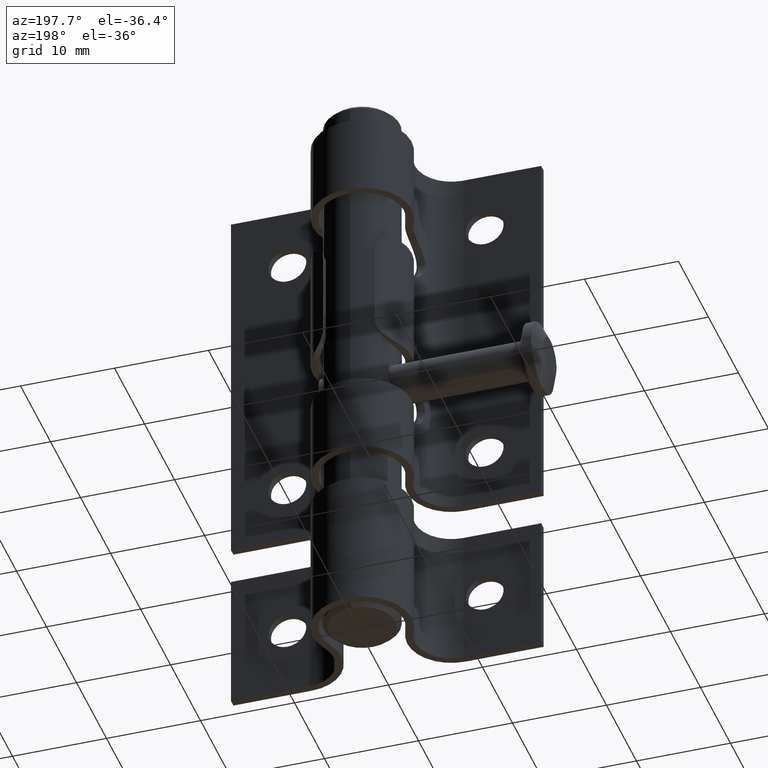
[diagram: clean part render]
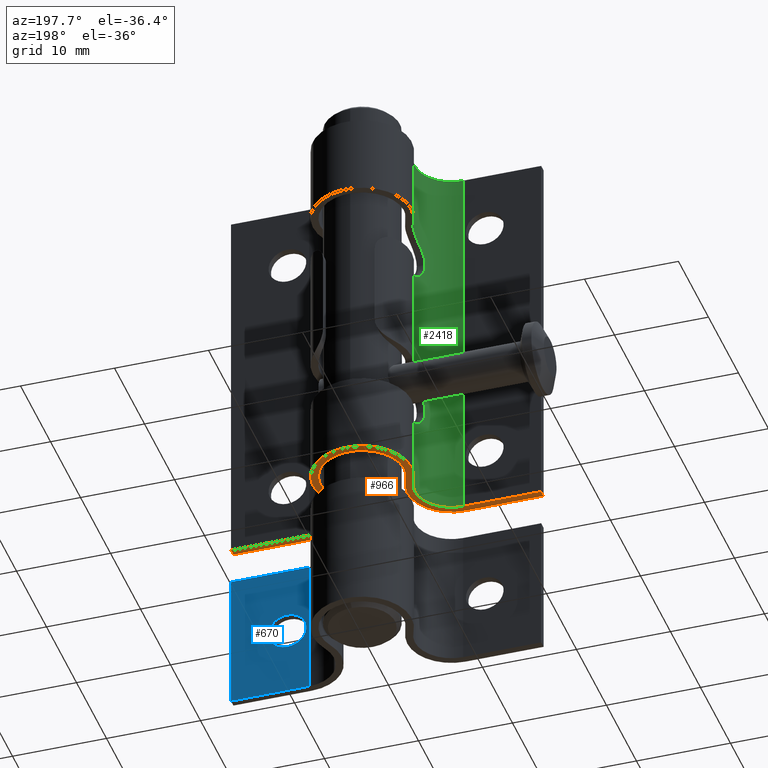
[diagram: same view with three faces highlighted in distinct colors, each labeled with its STEP entity id]
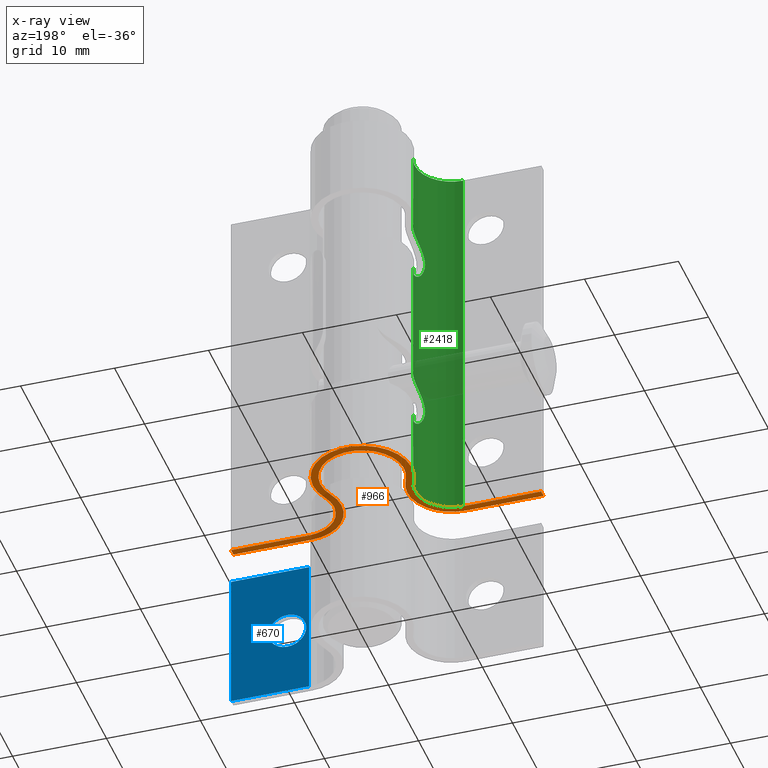
[diagram: x-ray of the same camera — body ghosted, the three highlighted faces saturated]
A machine part, auxiliary view with three faces highlighted in distinct colors.
The next image is the same camera in x-ray (body ghosted, the three faces saturated) — at least one of them is partly hidden behind the body in this view.
Their STEP definitions:

[orange] entity #966 — the highlighted planar face has unit normal (0, 0, 1).
#46 = VERTEX_POINT ( 'NONE', #675 ) ;
#51 = VECTOR ( 'NONE', #6102, 1000.000000000000000 ) ;
#617 = EDGE_CURVE ( 'NONE', #3458, #1690, #6745, .T. ) ;
#675 = CARTESIAN_POINT ( 'NONE',  ( -8.192006389780432940, 0.000000000000000000, -20.50000000000000000 ) ) ;
#966 = ADVANCED_FACE ( 'NONE', ( #10582 ), #8361, .F. ) ;
#1041 = CARTESIAN_POINT ( 'NONE',  ( -8.192006389780432940, 0.7999999999999994893, -20.50000000000000000 ) ) ;
#1246 = VECTOR ( 'NONE', #3493, 1000.000000000000000 ) ;
#1252 = ORIENTED_EDGE ( 'NONE', *, *, #6475, .F. ) ;
#1642 = DIRECTION ( 'NONE',  ( 1.000000000000000000, 0.000000000000000000, -0.000000000000000000 ) ) ;
#1690 = VERTEX_POINT ( 'NONE', #14532 ) ;
#1699 = CARTESIAN_POINT ( 'NONE',  ( 8.192006389780432940, 4.692006389780432052, -20.50000000000000000 ) ) ;
#1744 = DIRECTION ( 'NONE',  ( 1.000000000000000000, 0.000000000000000000, 0.000000000000000000 ) ) ;
#1861 = ORIENTED_EDGE ( 'NONE', *, *, #11573, .F. ) ;
#1955 = CIRCLE ( 'NONE', #14147, 4.692006389780432052 ) ;
#2044 = ORIENTED_EDGE ( 'NONE', *, *, #14173, .F. ) ;
#2145 = ORIENTED_EDGE ( 'NONE', *, *, #617, .F. ) ;
#2167 = EDGE_CURVE ( 'NONE', #11341, #11452, #5799, .T. ) ;
#2306 = CIRCLE ( 'NONE', #15014, 3.892006389780433562 ) ;
#2394 = ORIENTED_EDGE ( 'NONE', *, *, #10800, .F. ) ;
#3098 = LINE ( 'NONE', #9563, #8194 ) ;
#3175 = CARTESIAN_POINT ( 'NONE',  ( -16.50000000000000000, 0.8000000000000000444, -20.50000000000000000 ) ) ;
#3458 = VERTEX_POINT ( 'NONE', #13278 ) ;
#3493 = DIRECTION ( 'NONE',  ( -1.000000000000000000, -0.000000000000000000, -0.000000000000000000 ) ) ;
#3506 = VERTEX_POINT ( 'NONE', #7576 ) ;
#3641 = VERTEX_POINT ( 'NONE', #1041 ) ;
#3969 = ORIENTED_EDGE ( 'NONE', *, *, #6171, .F. ) ;
#4138 = VECTOR ( 'NONE', #11155, 1000.000000000000000 ) ;
#4319 = EDGE_CURVE ( 'NONE', #8022, #46, #13120, .T. ) ;
#4341 = LINE ( 'NONE', #9322, #1246 ) ;
#4384 = AXIS2_PLACEMENT_3D ( 'NONE', #9643, #8568, #9591 ) ;
#4401 = ORIENTED_EDGE ( 'NONE', *, *, #2167, .F. ) ;
#4511 = CARTESIAN_POINT ( 'NONE',  ( -16.50000000000000000, 0.000000000000000000, -20.50000000000000000 ) ) ;
#4608 = EDGE_CURVE ( 'NONE', #4760, #10935, #3098, .T. ) ;
#4697 = VERTEX_POINT ( 'NONE', #4898 ) ;
#4760 = VERTEX_POINT ( 'NONE', #14128 ) ;
#4868 = DIRECTION ( 'NONE',  ( -1.000000000000000000, 0.000000000000000000, 0.000000000000000000 ) ) ;
#4898 = CARTESIAN_POINT ( 'NONE',  ( 8.192006389780432940, 0.7999999999999990452, -20.50000000000000000 ) ) ;
#5095 = DIRECTION ( 'NONE',  ( 1.000000000000000000, 0.000000000000000000, 0.000000000000000000 ) ) ;
#5130 = ORIENTED_EDGE ( 'NONE', *, *, #9130, .F. ) ;
#5151 = DIRECTION ( 'NONE',  ( 0.000000000000000000, 0.000000000000000000, 1.000000000000000000 ) ) ;
#5427 = DIRECTION ( 'NONE',  ( -1.000000000000000000, -1.174509756527323186E-16, -0.000000000000000000 ) ) ;
#5799 = CIRCLE ( 'NONE', #13586, 5.250000000000000888 ) ;
#6102 = DIRECTION ( 'NONE',  ( -0.000000000000000000, -1.000000000000000000, -0.000000000000000000 ) ) ;
#6171 = EDGE_CURVE ( 'NONE', #3641, #11331, #4341, .T. ) ;
#6320 = DIRECTION ( 'NONE',  ( 1.000000000000000000, 0.000000000000000000, 0.000000000000000000 ) ) ;
#6475 = EDGE_CURVE ( 'NONE', #10935, #4697, #11632, .T. ) ;
#6655 = CARTESIAN_POINT ( 'NONE',  ( 0.000000000000000000, 8.749999999999998224, -20.50000000000000000 ) ) ;
#6745 = CIRCLE ( 'NONE', #7325, 4.450000000000001954 ) ;
#7325 = AXIS2_PLACEMENT_3D ( 'NONE', #8305, #11707, #4868 ) ;
#7416 = CIRCLE ( 'NONE', #4384, 3.892006389780432674 ) ;
#7441 = DIRECTION ( 'NONE',  ( 1.000000000000000000, 0.000000000000000000, 0.000000000000000000 ) ) ;
#7576 = CARTESIAN_POINT ( 'NONE',  ( 8.192006389780432940, 0.000000000000000000, -20.50000000000000000 ) ) ;
#7736 = CARTESIAN_POINT ( 'NONE',  ( 16.50000000000000000, 0.8000000000000000444, -20.50000000000000000 ) ) ;
#7845 = ORIENTED_EDGE ( 'NONE', *, *, #4608, .F. ) ;
#7868 = CARTESIAN_POINT ( 'NONE',  ( 4.704441422664571881, 6.419607135970900380, -20.50000000000000000 ) ) ;
#8022 = VERTEX_POINT ( 'NONE', #4511 ) ;
#8194 = VECTOR ( 'NONE', #9601, 1000.000000000000000 ) ;
#8305 = CARTESIAN_POINT ( 'NONE',  ( 0.000000000000000000, 8.749999999999998224, -20.50000000000000000 ) ) ;
#8306 = AXIS2_PLACEMENT_3D ( 'NONE', #14468, #14419, #1642 ) ;
#8361 = PLANE ( 'NONE',  #8306 ) ;
#8568 = DIRECTION ( 'NONE',  ( -0.000000000000000000, -0.000000000000000000, -1.000000000000000000 ) ) ;
#8705 = VECTOR ( 'NONE', #5427, 1000.000000000000000 ) ;
#9130 = EDGE_CURVE ( 'NONE', #11452, #3641, #7416, .T. ) ;
#9157 = DIRECTION ( 'NONE',  ( -1.000000000000000000, 0.000000000000000000, 0.000000000000000000 ) ) ;
#9222 = CIRCLE ( 'NONE', #13850, 4.692006389780432052 ) ;
#9322 = CARTESIAN_POINT ( 'NONE',  ( -16.50000000000000000, 0.8000000000000000444, -20.50000000000000000 ) ) ;
#9516 = EDGE_LOOP ( 'NONE', ( #9858, #3969, #5130, #4401, #10797, #1252, #7845, #2394, #2044, #2145, #1861, #9667 ) ) ;
#9563 = CARTESIAN_POINT ( 'NONE',  ( 16.50000000000000000, 0.8000000000000000444, -20.50000000000000000 ) ) ;
#9572 = EDGE_CURVE ( 'NONE', #11331, #8022, #10229, .T. ) ;
#9591 = DIRECTION ( 'NONE',  ( 1.000000000000000000, 0.000000000000000000, 0.000000000000000000 ) ) ;
#9601 = DIRECTION ( 'NONE',  ( -0.000000000000000000, 1.000000000000000000, -0.000000000000000000 ) ) ;
#9643 = CARTESIAN_POINT ( 'NONE',  ( -8.192006389780432940, 4.692006389780432052, -20.50000000000000000 ) ) ;
#9667 = ORIENTED_EDGE ( 'NONE', *, *, #4319, .F. ) ;
#9850 = CARTESIAN_POINT ( 'NONE',  ( -16.50000000000000000, 0.000000000000000000, -20.50000000000000000 ) ) ;
#9852 = CARTESIAN_POINT ( 'NONE',  ( 8.192006389780432940, 4.692006389780432052, -20.50000000000000000 ) ) ;
#9858 = ORIENTED_EDGE ( 'NONE', *, *, #9572, .F. ) ;
#10229 = LINE ( 'NONE', #13852, #51 ) ;
#10582 = FACE_OUTER_BOUND ( 'NONE', #9516, .T. ) ;
#10705 = CARTESIAN_POINT ( 'NONE',  ( -4.704441422664572769, 6.419607135970900380, -20.50000000000000000 ) ) ;
#10797 = ORIENTED_EDGE ( 'NONE', *, *, #11541, .F. ) ;
#10800 = EDGE_CURVE ( 'NONE', #3506, #4760, #12340, .T. ) ;
#10935 = VERTEX_POINT ( 'NONE', #7736 ) ;
#11155 = DIRECTION ( 'NONE',  ( 1.000000000000000000, 0.000000000000000000, 0.000000000000000000 ) ) ;
#11331 = VERTEX_POINT ( 'NONE', #3175 ) ;
#11341 = VERTEX_POINT ( 'NONE', #7868 ) ;
#11452 = VERTEX_POINT ( 'NONE', #10705 ) ;
#11541 = EDGE_CURVE ( 'NONE', #4697, #11341, #2306, .T. ) ;
#11573 = EDGE_CURVE ( 'NONE', #46, #3458, #1955, .T. ) ;
#11632 = LINE ( 'NONE', #14646, #8705 ) ;
#11707 = DIRECTION ( 'NONE',  ( -0.000000000000000000, -0.000000000000000000, -1.000000000000000000 ) ) ;
#11831 = VECTOR ( 'NONE', #1744, 1000.000000000000000 ) ;
#12340 = LINE ( 'NONE', #14502, #4138 ) ;
#13095 = DIRECTION ( 'NONE',  ( 0.000000000000000000, 0.000000000000000000, 1.000000000000000000 ) ) ;
#13120 = LINE ( 'NONE', #9850, #11831 ) ;
#13278 = CARTESIAN_POINT ( 'NONE',  ( -3.987574158258543999, 6.774714620013430277, -20.50000000000000000 ) ) ;
#13308 = CARTESIAN_POINT ( 'NONE',  ( -8.192006389780432940, 4.692006389780432052, -20.50000000000000000 ) ) ;
#13365 = DIRECTION ( 'NONE',  ( -0.000000000000000000, -0.000000000000000000, -1.000000000000000000 ) ) ;
#13586 = AXIS2_PLACEMENT_3D ( 'NONE', #6655, #14804, #9157 ) ;
#13850 = AXIS2_PLACEMENT_3D ( 'NONE', #1699, #13095, #5095 ) ;
#13852 = CARTESIAN_POINT ( 'NONE',  ( -16.50000000000000000, 0.000000000000000000, -20.50000000000000000 ) ) ;
#14128 = CARTESIAN_POINT ( 'NONE',  ( 16.50000000000000000, 0.000000000000000000, -20.50000000000000000 ) ) ;
#14147 = AXIS2_PLACEMENT_3D ( 'NONE', #13308, #5151, #6320 ) ;
#14173 = EDGE_CURVE ( 'NONE', #1690, #3506, #9222, .T. ) ;
#14419 = DIRECTION ( 'NONE',  ( 0.000000000000000000, 0.000000000000000000, 1.000000000000000000 ) ) ;
#14468 = CARTESIAN_POINT ( 'NONE',  ( -8.192006389780432940, 4.692006389780432052, -20.50000000000000000 ) ) ;
#14502 = CARTESIAN_POINT ( 'NONE',  ( 8.192006389780432940, 0.000000000000000000, -20.50000000000000000 ) ) ;
#14532 = CARTESIAN_POINT ( 'NONE',  ( 3.987574158258543999, 6.774714620013430277, -20.50000000000000000 ) ) ;
#14646 = CARTESIAN_POINT ( 'NONE',  ( 8.192006389780432940, 0.7999999999999990452, -20.50000000000000000 ) ) ;
#14804 = DIRECTION ( 'NONE',  ( 0.000000000000000000, 0.000000000000000000, 1.000000000000000000 ) ) ;
#15014 = AXIS2_PLACEMENT_3D ( 'NONE', #9852, #13365, #7441 ) ;

[blue] entity #670 — the highlighted planar face has unit normal (0, -1, 0).
#164 = EDGE_CURVE ( 'NONE', #10051, #14942, #4066, .T. ) ;
#476 = CARTESIAN_POINT ( 'NONE',  ( 8.192006389780432940, 0.7999999999999990452, 7.500000000000000000 ) ) ;
#604 = DIRECTION ( 'NONE',  ( 0.000000000000000000, 0.000000000000000000, 1.000000000000000000 ) ) ;
#670 = ADVANCED_FACE ( 'NONE', ( #11305, #11659 ), #4934, .F. ) ;
#1460 = DIRECTION ( 'NONE',  ( -1.000000000000000000, -1.174509756527323186E-16, -0.000000000000000000 ) ) ;
#1480 = DIRECTION ( 'NONE',  ( 1.174509756527323186E-16, -1.000000000000000000, 0.000000000000000000 ) ) ;
#1688 = CARTESIAN_POINT ( 'NONE',  ( 8.192006389780432940, 0.7999999999999990452, -7.500000000000000000 ) ) ;
#1906 = VECTOR ( 'NONE', #14463, 1000.000000000000000 ) ;
#3258 = EDGE_CURVE ( 'NONE', #8815, #10080, #3269, .T. ) ;
#3269 = LINE ( 'NONE', #5843, #12201 ) ;
#3723 = VERTEX_POINT ( 'NONE', #7395 ) ;
#3803 = DIRECTION ( 'NONE',  ( 1.000000000000000000, 1.174509756527323186E-16, 0.000000000000000000 ) ) ;
#3930 = CARTESIAN_POINT ( 'NONE',  ( 10.50000000000000000, 0.8000000000000000444, -3.857637417314162689E-15 ) ) ;
#3965 = EDGE_CURVE ( 'NONE', #3723, #3723, #4204, .T. ) ;
#4066 = LINE ( 'NONE', #476, #1906 ) ;
#4152 = VECTOR ( 'NONE', #6314, 1000.000000000000000 ) ;
#4204 = CIRCLE ( 'NONE', #11906, 1.999999999999999556 ) ;
#4565 = ORIENTED_EDGE ( 'NONE', *, *, #6430, .F. ) ;
#4891 = ORIENTED_EDGE ( 'NONE', *, *, #3965, .F. ) ;
#4934 = PLANE ( 'NONE',  #14061 ) ;
#5126 = CARTESIAN_POINT ( 'NONE',  ( 8.192006389780432940, 0.7999999999999990452, 7.500000000000000000 ) ) ;
#5782 = DIRECTION ( 'NONE',  ( -0.000000000000000000, -0.000000000000000000, -1.000000000000000000 ) ) ;
#5843 = CARTESIAN_POINT ( 'NONE',  ( 16.50000000000000000, 0.8000000000000000444, 7.500000000000000000 ) ) ;
#5983 = EDGE_CURVE ( 'NONE', #10080, #14942, #6711, .T. ) ;
#6108 = CARTESIAN_POINT ( 'NONE',  ( 8.192006389780432940, 0.7999999999999990452, 7.500000000000000000 ) ) ;
#6314 = DIRECTION ( 'NONE',  ( -1.000000000000000000, -1.174509756527323186E-16, -0.000000000000000000 ) ) ;
#6405 = DIRECTION ( 'NONE',  ( 0.000000000000000000, 1.000000000000000000, 0.000000000000000000 ) ) ;
#6430 = EDGE_CURVE ( 'NONE', #8815, #10051, #9810, .T. ) ;
#6711 = LINE ( 'NONE', #1688, #4152 ) ;
#7395 = CARTESIAN_POINT ( 'NONE',  ( 10.50000000000000000, 0.8000000000000000444, 1.999999999999995781 ) ) ;
#7428 = VECTOR ( 'NONE', #1460, 1000.000000000000000 ) ;
#7692 = ORIENTED_EDGE ( 'NONE', *, *, #164, .F. ) ;
#8170 = EDGE_LOOP ( 'NONE', ( #13673, #7692, #4565, #12383 ) ) ;
#8791 = CARTESIAN_POINT ( 'NONE',  ( 8.192006389780432940, 0.7999999999999990452, 7.500000000000000000 ) ) ;
#8815 = VERTEX_POINT ( 'NONE', #14591 ) ;
#9135 = CARTESIAN_POINT ( 'NONE',  ( 16.50000000000000000, 0.8000000000000000444, -7.500000000000000000 ) ) ;
#9810 = LINE ( 'NONE', #5126, #7428 ) ;
#10051 = VERTEX_POINT ( 'NONE', #8791 ) ;
#10080 = VERTEX_POINT ( 'NONE', #9135 ) ;
#11190 = CARTESIAN_POINT ( 'NONE',  ( 8.192006389780432940, 0.7999999999999990452, -7.500000000000000000 ) ) ;
#11305 = FACE_BOUND ( 'NONE', #14805, .T. ) ;
#11659 = FACE_OUTER_BOUND ( 'NONE', #8170, .T. ) ;
#11906 = AXIS2_PLACEMENT_3D ( 'NONE', #3930, #6405, #604 ) ;
#12201 = VECTOR ( 'NONE', #5782, 1000.000000000000000 ) ;
#12383 = ORIENTED_EDGE ( 'NONE', *, *, #3258, .T. ) ;
#13673 = ORIENTED_EDGE ( 'NONE', *, *, #5983, .T. ) ;
#14061 = AXIS2_PLACEMENT_3D ( 'NONE', #6108, #1480, #3803 ) ;
#14463 = DIRECTION ( 'NONE',  ( -0.000000000000000000, -0.000000000000000000, -1.000000000000000000 ) ) ;
#14591 = CARTESIAN_POINT ( 'NONE',  ( 16.50000000000000000, 0.8000000000000000444, 7.500000000000000000 ) ) ;
#14805 = EDGE_LOOP ( 'NONE', ( #4891 ) ) ;
#14942 = VERTEX_POINT ( 'NONE', #11190 ) ;

[green] entity #2418 — the highlighted cylindrical surface (partial cylindrical patch) has radius 3.892 mm, axis along (-0, -0, -1).
#116 = CARTESIAN_POINT ( 'NONE',  ( -4.395750246826683139, 5.550000000000008704, -12.00000000000000000 ) ) ;
#265 = CARTESIAN_POINT ( 'NONE',  ( -4.610754948063200409, 3.164355116029331949, -10.62951406229491269 ) ) ;
#350 = CARTESIAN_POINT ( 'NONE',  ( -4.492521313729572974, 3.475989417819128846, -7.435405907711704288 ) ) ;
#369 = CARTESIAN_POINT ( 'NONE',  ( -4.790826365271035669, 2.800000000000007372, 9.250000000000000000 ) ) ;
#413 = CARTESIAN_POINT ( 'NONE',  ( -4.790826365271035669, 2.800000000000007372, 9.250000000000000000 ) ) ;
#484 = CIRCLE ( 'NONE', #12305, 3.892006389780432674 ) ;
#505 = CARTESIAN_POINT ( 'NONE',  ( -4.385805222277294746, 3.865080862443550647, 11.43089588567125148 ) ) ;
#621 = CARTESIAN_POINT ( 'NONE',  ( -4.328199048717781494, 5.192387823474288844, 11.98263748640717985 ) ) ;
#706 = CIRCLE ( 'NONE', #3349, 3.892006389780432674 ) ;
#746 = EDGE_CURVE ( 'NONE', #4380, #7655, #3632, .T. ) ;
#760 = ORIENTED_EDGE ( 'NONE', *, *, #4523, .T. ) ;
#1041 = CARTESIAN_POINT ( 'NONE',  ( -8.192006389780432940, 0.7999999999999994893, -20.50000000000000000 ) ) ;
#1055 = CIRCLE ( 'NONE', #3922, 3.892006389780433562 ) ;
#1104 = VERTEX_POINT ( 'NONE', #1748 ) ;
#1108 = VERTEX_POINT ( 'NONE', #8665 ) ;
#1121 = CARTESIAN_POINT ( 'NONE',  ( -4.296580586082398234, 4.657582444082603246, 6.642576039455015291 ) ) ;
#1167 = CARTESIAN_POINT ( 'NONE',  ( -4.313804280126113611, 4.324480068509848785, 6.781565333727861855 ) ) ;
#1209 = CARTESIAN_POINT ( 'NONE',  ( -4.742506246391002378, 2.889153209979012260, 8.532452071548421557 ) ) ;
#1241 = DIRECTION ( 'NONE',  ( -0.000000000000000000, -0.000000000000000000, -1.000000000000000000 ) ) ;
#1262 = ORIENTED_EDGE ( 'NONE', *, *, #9306, .F. ) ;
#1266 = CARTESIAN_POINT ( 'NONE',  ( -4.298516473094553980, 4.834943057535244115, 6.588381117850130586 ) ) ;
#1402 = CARTESIAN_POINT ( 'NONE',  ( -4.714429760718751972, 2.942720195748070200, -10.14254544556991000 ) ) ;
#1425 = DIRECTION ( 'NONE',  ( -0.000000000000000000, -0.000000000000000000, -1.000000000000000000 ) ) ;
#1434 = EDGE_CURVE ( 'NONE', #13481, #12406, #2552, .T. ) ;
#1534 = CARTESIAN_POINT ( 'NONE',  ( -4.790826365271032117, 2.800000000000010036, -9.250000000000000000 ) ) ;
#1631 = CARTESIAN_POINT ( 'NONE',  ( -8.192006389780432940, 4.692006389780432052, 20.50000000000000000 ) ) ;
#1650 = VECTOR ( 'NONE', #14115, 1000.000000000000000 ) ;
#1701 = DIRECTION ( 'NONE',  ( -0.000000000000000000, -0.000000000000000000, -1.000000000000000000 ) ) ;
#1748 = CARTESIAN_POINT ( 'NONE',  ( -4.395750246826682250, 5.550000000000007816, 6.499999999999995559 ) ) ;
#1817 = CYLINDRICAL_SURFACE ( 'NONE', #10568, 3.892006389780431785 ) ;
#2021 = ORIENTED_EDGE ( 'NONE', *, *, #14420, .T. ) ;
#2228 = CARTESIAN_POINT ( 'NONE',  ( -4.648508748623620512, 3.080433907158462770, 8.026975608111200700 ) ) ;
#2386 = CARTESIAN_POINT ( 'NONE',  ( -4.332682776943116210, 4.166009213854698245, 6.866738636277351482 ) ) ;
#2418 = ADVANCED_FACE ( 'NONE', ( #6541 ), #1817, .F. ) ;
#2433 = CARTESIAN_POINT ( 'NONE',  ( -4.313804280126114499, 4.324480068509852337, -11.71843466627213459 ) ) ;
#2479 = CARTESIAN_POINT ( 'NONE',  ( -4.296580586082397346, 4.657582444082605910, -11.85742396054498293 ) ) ;
#2552 = LINE ( 'NONE', #7643, #14576 ) ;
#2678 = CARTESIAN_POINT ( 'NONE',  ( -4.298656686812079464, 4.837666399499647163, -6.587712460586683250 ) ) ;
#2682 = CARTESIAN_POINT ( 'NONE',  ( -4.610388573667998813, 3.165275444239477043, 10.63091284100199729 ) ) ;
#2739 = CARTESIAN_POINT ( 'NONE',  ( -4.790826365271033005, 2.800000000000010036, -9.066282883027524164 ) ) ;
#2846 = CARTESIAN_POINT ( 'NONE',  ( -4.790826365271032117, 2.800000000000010036, -9.250000000000000000 ) ) ;
#2927 = VERTEX_POINT ( 'NONE', #4908 ) ;
#2977 = CARTESIAN_POINT ( 'NONE',  ( -8.192006389780432940, 0.7999999999999994893, 20.50000000000000000 ) ) ;
#3106 = DIRECTION ( 'NONE',  ( -0.000000000000000000, -0.000000000000000000, -1.000000000000000000 ) ) ;
#3207 = CIRCLE ( 'NONE', #13083, 3.892006389780432674 ) ;
#3349 = AXIS2_PLACEMENT_3D ( 'NONE', #13924, #10427, #8119 ) ;
#3479 = ORIENTED_EDGE ( 'NONE', *, *, #3927, .T. ) ;
#3632 = LINE ( 'NONE', #13959, #1650 ) ;
#3641 = VERTEX_POINT ( 'NONE', #1041 ) ;
#3674 = ORIENTED_EDGE ( 'NONE', *, *, #6289, .T. ) ;
#3691 = CARTESIAN_POINT ( 'NONE',  ( -4.298516473094553092, 4.834943057535244115, -11.91161888214986853 ) ) ;
#3808 = CARTESIAN_POINT ( 'NONE',  ( -8.192006389780432940, 4.692006389780432052, 6.499999999999995559 ) ) ;
#3830 = VECTOR ( 'NONE', #5265, 1000.000000000000000 ) ;
#3853 = CARTESIAN_POINT ( 'NONE',  ( -4.385805222277293858, 3.865080862443552867, -7.069104114328750299 ) ) ;
#3854 = CARTESIAN_POINT ( 'NONE',  ( -4.704441422664572769, 6.419607135970900380, -6.499999999999999112 ) ) ;
#3856 = CARTESIAN_POINT ( 'NONE',  ( -4.742149599950213457, 2.889831864452029109, 9.970042835005802573 ) ) ;
#3895 = CARTESIAN_POINT ( 'NONE',  ( -4.328199048717782382, 5.192387823474292396, -6.517362513592820150 ) ) ;
#3922 = AXIS2_PLACEMENT_3D ( 'NONE', #3808, #13085, #6109 ) ;
#3927 = EDGE_CURVE ( 'NONE', #1108, #11452, #12215, .T. ) ;
#3998 = CARTESIAN_POINT ( 'NONE',  ( -4.532778879495658941, 3.361988499396439511, 10.92524241664243689 ) ) ;
#4057 = CARTESIAN_POINT ( 'NONE',  ( -4.298656686812079464, 4.837666399499645387, 11.91228753941331320 ) ) ;
#4380 = VERTEX_POINT ( 'NONE', #9788 ) ;
#4384 = AXIS2_PLACEMENT_3D ( 'NONE', #9643, #8568, #9591 ) ;
#4523 = EDGE_CURVE ( 'NONE', #9181, #5312, #9897, .T. ) ;
#4620 = CARTESIAN_POINT ( 'NONE',  ( -4.355160145203719857, 5.370406095343943420, 6.499999999999998224 ) ) ;
#4646 = DIRECTION ( 'NONE',  ( -1.000000000000000000, 0.000000000000000000, 0.000000000000000000 ) ) ;
#4853 = CARTESIAN_POINT ( 'NONE',  ( -4.395750246826683139, 5.550000000000008704, -12.00000000000000000 ) ) ;
#4883 = CARTESIAN_POINT ( 'NONE',  ( -4.395750246826682250, 5.550000000000009592, -6.499999999999999112 ) ) ;
#4908 = CARTESIAN_POINT ( 'NONE',  ( -8.192006389780432940, 0.7999999999999994893, 20.50000000000000000 ) ) ;
#4970 = CARTESIAN_POINT ( 'NONE',  ( -4.780290964697938350, 2.818629025677172883, -8.883163804601126756 ) ) ;
#5064 = CARTESIAN_POINT ( 'NONE',  ( -4.332768504278013744, 4.165455254213862979, -6.867082626032167347 ) ) ;
#5265 = DIRECTION ( 'NONE',  ( -0.000000000000000000, -0.000000000000000000, -1.000000000000000000 ) ) ;
#5312 = VERTEX_POINT ( 'NONE', #1534 ) ;
#5704 = CARTESIAN_POINT ( 'NONE',  ( -4.419338804790838182, 3.726759056953510729, 7.183658548139852940 ) ) ;
#5881 = EDGE_CURVE ( 'NONE', #1104, #13481, #1055, .T. ) ;
#5893 = CARTESIAN_POINT ( 'NONE',  ( -4.332682776943116210, 4.166009213854698245, -11.63326136372264230 ) ) ;
#5929 = DIRECTION ( 'NONE',  ( 0.000000000000000000, 1.000000000000000000, -4.457144470604713424E-16 ) ) ;
#5930 = CARTESIAN_POINT ( 'NONE',  ( -4.419338804790837294, 3.726759056953514282, -11.31634145186014173 ) ) ;
#6100 = CARTESIAN_POINT ( 'NONE',  ( -4.355245130862329006, 5.370782120671774074, 12.00000000000000178 ) ) ;
#6109 = DIRECTION ( 'NONE',  ( 4.457144470604712833E-15, 1.000000000000000000, 4.457144470604713424E-16 ) ) ;
#6206 = CARTESIAN_POINT ( 'NONE',  ( -4.648141188764522980, 3.081217284370003640, 10.47476887366139309 ) ) ;
#6289 = EDGE_CURVE ( 'NONE', #10592, #1108, #7797, .T. ) ;
#6330 = VECTOR ( 'NONE', #1701, 1000.000000000000000 ) ;
#6541 = FACE_OUTER_BOUND ( 'NONE', #12027, .T. ) ;
#6660 = EDGE_CURVE ( 'NONE', #12406, #9181, #706, .T. ) ;
#6855 = CARTESIAN_POINT ( 'NONE',  ( -4.532494096455498500, 3.362702031103008249, 7.573668244128286098 ) ) ;
#7054 = CARTESIAN_POINT ( 'NONE',  ( -4.492419731104907221, 3.476365951447296876, 7.435057476182930891 ) ) ;
#7102 = CARTESIAN_POINT ( 'NONE',  ( -4.385785642324785627, 3.865123448050652666, -11.43095305512051141 ) ) ;
#7321 = CARTESIAN_POINT ( 'NONE',  ( -4.790826365271032117, 2.800000000000010036, -9.250000000000000000 ) ) ;
#7347 = AXIS2_PLACEMENT_3D ( 'NONE', #12850, #10731, #5929 ) ;
#7416 = CIRCLE ( 'NONE', #4384, 3.892006389780432674 ) ;
#7643 = CARTESIAN_POINT ( 'NONE',  ( -4.704441422664572769, 6.419607135970900380, 20.50000000000000000 ) ) ;
#7655 = VERTEX_POINT ( 'NONE', #10650 ) ;
#7797 = CIRCLE ( 'NONE', #7347, 3.892006389780433562 ) ;
#7810 = DIRECTION ( 'NONE',  ( -0.000000000000000000, 5.337610695313251385E-16, -1.000000000000000000 ) ) ;
#7915 = CARTESIAN_POINT ( 'NONE',  ( -8.192006389780432940, 4.692006389780432052, 11.99999999999999822 ) ) ;
#8053 = CARTESIAN_POINT ( 'NONE',  ( -4.395750246826682250, 5.550000000000007816, 6.499999999999995559 ) ) ;
#8119 = DIRECTION ( 'NONE',  ( 1.000000000000000000, 1.693714898829791476E-14, 0.000000000000000000 ) ) ;
#8290 = CARTESIAN_POINT ( 'NONE',  ( -4.742506246391000602, 2.889153209979014036, -9.967547928451574890 ) ) ;
#8488 = CARTESIAN_POINT ( 'NONE',  ( -4.742149599950212568, 2.889831864452031773, -8.529957164994197427 ) ) ;
#8529 = B_SPLINE_CURVE_WITH_KNOTS ( 'NONE', 3,
 ( #2846, #11007, #9410, #8290, #1402, #9570, #265, #11889, #12914, #5930, #7102, #5893, #2433, #2479, #3691, #10639, #12974, #4853 ),
 .UNSPECIFIED., .F., .F.,
 ( 4, 2, 2, 2, 2, 2, 2, 2, 4 ),
 ( 1.788112030672749005E-18, 0.0005431114426958862269, 0.001086222885391770719, 0.001629334328087655211, 0.002172445770783539704, 0.002715557213479424196, 0.003258668656175308688, 0.003801780098871193180, 0.004344891541567077672 ),
 .UNSPECIFIED. ) ;
#8539 = CARTESIAN_POINT ( 'NONE',  ( -4.610388573667996148, 3.165275444239479263, -7.869087158998000930 ) ) ;
#8568 = DIRECTION ( 'NONE',  ( -0.000000000000000000, -0.000000000000000000, -1.000000000000000000 ) ) ;
#8570 = ORIENTED_EDGE ( 'NONE', *, *, #13112, .F. ) ;
#8665 = CARTESIAN_POINT ( 'NONE',  ( -4.704441422664572769, 6.419607135970900380, -12.00000000000000000 ) ) ;
#8697 = CARTESIAN_POINT ( 'NONE',  ( -4.332768504278014632, 4.165455254213858538, 11.63291737396783532 ) ) ;
#8793 = CARTESIAN_POINT ( 'NONE',  ( -4.704441422664572769, 6.419607135970900380, 20.50000000000000000 ) ) ;
#8858 = CARTESIAN_POINT ( 'NONE',  ( -4.395750246826681362, 5.550000000000005151, 11.99999999999999822 ) ) ;
#8976 = ORIENTED_EDGE ( 'NONE', *, *, #13434, .T. ) ;
#9018 = ORIENTED_EDGE ( 'NONE', *, *, #9130, .T. ) ;
#9130 = EDGE_CURVE ( 'NONE', #11452, #3641, #7416, .T. ) ;
#9181 = VERTEX_POINT ( 'NONE', #4883 ) ;
#9306 = EDGE_CURVE ( 'NONE', #2927, #3641, #9428, .T. ) ;
#9376 = CARTESIAN_POINT ( 'NONE',  ( -4.385785642324784739, 3.865123448050650889, 7.069046944879487704 ) ) ;
#9410 = CARTESIAN_POINT ( 'NONE',  ( -4.780493624143159259, 2.818263750820186431, -9.614139718387228584 ) ) ;
#9428 = LINE ( 'NONE', #2977, #6330 ) ;
#9532 = CARTESIAN_POINT ( 'NONE',  ( -4.395750246826681362, 5.550000000000005151, 11.99999999999999822 ) ) ;
#9559 = ORIENTED_EDGE ( 'NONE', *, *, #746, .T. ) ;
#9570 = CARTESIAN_POINT ( 'NONE',  ( -4.648508748623620512, 3.080433907158465434, -10.47302439188879575 ) ) ;
#9591 = DIRECTION ( 'NONE',  ( 1.000000000000000000, 0.000000000000000000, 0.000000000000000000 ) ) ;
#9643 = CARTESIAN_POINT ( 'NONE',  ( -8.192006389780432940, 4.692006389780432052, -20.50000000000000000 ) ) ;
#9672 = CARTESIAN_POINT ( 'NONE',  ( -4.395750246826682250, 5.550000000000009592, -6.499999999999999112 ) ) ;
#9676 = CARTESIAN_POINT ( 'NONE',  ( -4.419104291213912461, 3.727591096116293912, 11.31714716501056728 ) ) ;
#9788 = CARTESIAN_POINT ( 'NONE',  ( -4.704441422664572769, 6.419607135970900380, 20.50000000000000000 ) ) ;
#9897 = B_SPLINE_CURVE_WITH_KNOTS ( 'NONE', 3,
 ( #9672, #12047, #3895, #2678, #14328, #10840, #5064, #3853, #14390, #350, #13185, #8539, #13130, #11983, #8488, #4970, #2739, #7321 ),
 .UNSPECIFIED., .F., .F.,
 ( 4, 2, 2, 2, 2, 2, 2, 2, 4 ),
 ( 0.000000000000000000, 0.0005430407401495039197, 0.001086081480299007839, 0.001629122220448511651, 0.002172162960598015679, 0.002715203700747519707, 0.003258244440897023302, 0.003801285181046527330, 0.004344325921196031358 ),
 .UNSPECIFIED. ) ;
#10399 = CARTESIAN_POINT ( 'NONE',  ( -4.328030025462391350, 5.191387284804446445, 6.517433729022505950 ) ) ;
#10427 = DIRECTION ( 'NONE',  ( -0.000000000000000000, -0.000000000000000000, -1.000000000000000000 ) ) ;
#10492 = CARTESIAN_POINT ( 'NONE',  ( -4.790826365271035669, 2.800000000000006928, 9.066036854258705091 ) ) ;
#10537 = CARTESIAN_POINT ( 'NONE',  ( -4.780493624143159259, 2.818263750820183766, 8.885860281612767864 ) ) ;
#10568 = AXIS2_PLACEMENT_3D ( 'NONE', #11577, #1241, #4646 ) ;
#10592 = VERTEX_POINT ( 'NONE', #116 ) ;
#10639 = CARTESIAN_POINT ( 'NONE',  ( -4.328030025462390462, 5.191387284804446445, -11.98256627097749494 ) ) ;
#10650 = CARTESIAN_POINT ( 'NONE',  ( -4.704441422664572769, 6.419607135970900380, 12.00000000000000000 ) ) ;
#10705 = CARTESIAN_POINT ( 'NONE',  ( -4.704441422664572769, 6.419607135970900380, -20.50000000000000000 ) ) ;
#10731 = DIRECTION ( 'NONE',  ( 0.000000000000000000, 2.668805347656625692E-16, 1.000000000000000000 ) ) ;
#10829 = VERTEX_POINT ( 'NONE', #8858 ) ;
#10840 = CARTESIAN_POINT ( 'NONE',  ( -4.313657631693708083, 4.325721144385837214, -6.780899643301775193 ) ) ;
#10962 = DIRECTION ( 'NONE',  ( 1.000000000000000000, 0.000000000000000000, 0.000000000000000000 ) ) ;
#11007 = CARTESIAN_POINT ( 'NONE',  ( -4.790826365271033893, 2.800000000000010036, -9.433963145741293133 ) ) ;
#11046 = CARTESIAN_POINT ( 'NONE',  ( -4.780290964697937461, 2.818629025677171107, 9.616836195398873244 ) ) ;
#11452 = VERTEX_POINT ( 'NONE', #10705 ) ;
#11577 = CARTESIAN_POINT ( 'NONE',  ( -8.192006389780432940, 4.692006389780432052, 20.50000000000000000 ) ) ;
#11591 = CARTESIAN_POINT ( 'NONE',  ( -4.610754948063201297, 3.164355116029328396, 7.870485937705089086 ) ) ;
#11777 = CARTESIAN_POINT ( 'NONE',  ( -4.704441422664572769, 6.419607135970900380, 6.499999999999996447 ) ) ;
#11889 = CARTESIAN_POINT ( 'NONE',  ( -4.532494096455498500, 3.362702031103011802, -10.92633175587171479 ) ) ;
#11930 = B_SPLINE_CURVE_WITH_KNOTS ( 'NONE', 3,
 ( #12859, #10492, #10537, #1209, #14049, #2228, #11591, #6855, #7054, #5704, #9376, #2386, #1167, #1121, #1266, #10399, #4620, #8053 ),
 .UNSPECIFIED., .F., .F.,
 ( 4, 2, 2, 2, 2, 2, 2, 2, 4 ),
 ( 1.788112030672749005E-18, 0.0005431114426958867690, 0.001086222885391771803, 0.001629334328087656729, 0.002172445770783541872, 0.002715557213479427232, 0.003258668656175310856, 0.003801780098871195349, 0.004344891541567079407 ),
 .UNSPECIFIED. ) ;
#11983 = CARTESIAN_POINT ( 'NONE',  ( -4.714505030239232397, 2.942547502161299011, -8.357734141414159268 ) ) ;
#12027 = EDGE_LOOP ( 'NONE', ( #13709, #2021, #14050, #12795, #12893, #760, #8976, #3674, #3479, #9018, #1262, #8570, #9559, #12531 ) ) ;
#12047 = CARTESIAN_POINT ( 'NONE',  ( -4.355245130862329894, 5.370782120671775850, -6.499999999999999112 ) ) ;
#12102 = CARTESIAN_POINT ( 'NONE',  ( -4.714505030239234173, 2.942547502161296791, 10.14226585858583363 ) ) ;
#12150 = CARTESIAN_POINT ( 'NONE',  ( -4.492521313729575638, 3.475989417819126626, 11.06459409228829216 ) ) ;
#12215 = LINE ( 'NONE', #8793, #3830 ) ;
#12305 = AXIS2_PLACEMENT_3D ( 'NONE', #7915, #7810, #13675 ) ;
#12406 = VERTEX_POINT ( 'NONE', #3854 ) ;
#12531 = ORIENTED_EDGE ( 'NONE', *, *, #13803, .T. ) ;
#12795 = ORIENTED_EDGE ( 'NONE', *, *, #1434, .T. ) ;
#12850 = CARTESIAN_POINT ( 'NONE',  ( -8.192006389780432940, 4.692006389780432052, -12.00000000000000000 ) ) ;
#12859 = CARTESIAN_POINT ( 'NONE',  ( -4.790826365271035669, 2.800000000000007372, 9.250000000000000000 ) ) ;
#12893 = ORIENTED_EDGE ( 'NONE', *, *, #6660, .T. ) ;
#12914 = CARTESIAN_POINT ( 'NONE',  ( -4.492419731104907221, 3.476365951447300429, -11.06494252381706644 ) ) ;
#12974 = CARTESIAN_POINT ( 'NONE',  ( -4.355160145203719857, 5.370406095343942532, -12.00000000000000355 ) ) ;
#13083 = AXIS2_PLACEMENT_3D ( 'NONE', #1631, #1425, #10962 ) ;
#13085 = DIRECTION ( 'NONE',  ( -0.000000000000000000, -4.003208021484937059E-16, 1.000000000000000000 ) ) ;
#13112 = EDGE_CURVE ( 'NONE', #4380, #2927, #3207, .T. ) ;
#13130 = CARTESIAN_POINT ( 'NONE',  ( -4.648141188764522092, 3.081217284370005860, -8.025231126338605137 ) ) ;
#13185 = CARTESIAN_POINT ( 'NONE',  ( -4.532778879495658053, 3.361988499396442176, -7.574757583357563107 ) ) ;
#13196 = VERTEX_POINT ( 'NONE', #369 ) ;
#13395 = CARTESIAN_POINT ( 'NONE',  ( -4.296529331669399099, 4.660187211959047282, 11.85836126523724232 ) ) ;
#13434 = EDGE_CURVE ( 'NONE', #5312, #10592, #8529, .T. ) ;
#13481 = VERTEX_POINT ( 'NONE', #11777 ) ;
#13675 = DIRECTION ( 'NONE',  ( -1.248000451769319877E-14, -1.000000000000000000, -4.457144470604714410E-16 ) ) ;
#13709 = ORIENTED_EDGE ( 'NONE', *, *, #14492, .T. ) ;
#13803 = EDGE_CURVE ( 'NONE', #7655, #10829, #484, .T. ) ;
#13924 = CARTESIAN_POINT ( 'NONE',  ( -8.192006389780432940, 4.692006389780432052, -6.499999999999999112 ) ) ;
#13959 = CARTESIAN_POINT ( 'NONE',  ( -4.704441422664572769, 6.419607135970900380, 20.50000000000000000 ) ) ;
#14049 = CARTESIAN_POINT ( 'NONE',  ( -4.714429760718752860, 2.942720195748067091, 8.357454554430089999 ) ) ;
#14050 = ORIENTED_EDGE ( 'NONE', *, *, #5881, .T. ) ;
#14115 = DIRECTION ( 'NONE',  ( -0.000000000000000000, -0.000000000000000000, -1.000000000000000000 ) ) ;
#14177 = B_SPLINE_CURVE_WITH_KNOTS ( 'NONE', 3,
 ( #9532, #6100, #621, #4057, #13395, #14548, #8697, #505, #9676, #12150, #3998, #2682, #6206, #12102, #3856, #11046, #14392, #413 ),
 .UNSPECIFIED., .F., .F.,
 ( 4, 2, 2, 2, 2, 2, 2, 2, 4 ),
 ( 0.000000000000000000, 0.0005430407401495042450, 0.001086081480299008490, 0.001629122220448512735, 0.002172162960598015679, 0.002715203700747518840, 0.003258244440897022001, 0.003801285181046525595, 0.004344325921196028756 ),
 .UNSPECIFIED. ) ;
#14328 = CARTESIAN_POINT ( 'NONE',  ( -4.296529331669401763, 4.660187211959050835, -6.641638734762758567 ) ) ;
#14390 = CARTESIAN_POINT ( 'NONE',  ( -4.419104291213908908, 3.727591096116295688, -7.182852834989437163 ) ) ;
#14392 = CARTESIAN_POINT ( 'NONE',  ( -4.790826365271034781, 2.800000000000007816, 9.433717116972481165 ) ) ;
#14420 = EDGE_CURVE ( 'NONE', #13196, #1104, #11930, .T. ) ;
#14492 = EDGE_CURVE ( 'NONE', #10829, #13196, #14177, .T. ) ;
#14548 = CARTESIAN_POINT ( 'NONE',  ( -4.313657631693709860, 4.325721144385834549, 11.71910035669822570 ) ) ;
#14576 = VECTOR ( 'NONE', #3106, 1000.000000000000000 ) ;